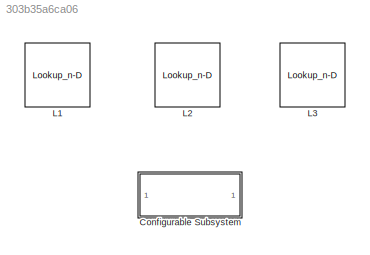
MODEL slx_303b35a6ca06
KIND library
CONFIG AbsTol = auto
CONFIG EnableMultiTasking = off
CONFIG FixedStep = auto
CONFIG MaxStep = auto
CONFIG MinStep = auto
CONFIG RelTol = 1e-3
CONFIG SampleTimeConstraint = Unconstrained
CONFIG Solver = VariableStepAuto
CONFIG SolverName = VariableStepAuto
CONFIG StartTime = 0.0
CONFIG StopTime = 10.0
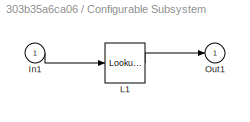
BLOCK [SubSystem] Configurable Subsystem
  BlockChoice = L1
  MemberBlocks = L1,L2,L3
  Ports = [1, 1]
  RequestExecContextInheritance = off
  TemplateBlock = self
  Variant = off
BLOCK [Inport] Configurable Subsystem/In1
  IconDisplay = Port number
BLOCK [Lookup_n-D] Configurable Subsystem/L1
  BreakpointsForDimension1 = [-5:5]
  InternalRulePriority = Speed
  NumberOfTableDimensions = 1
  Ports = [1, 1]
  RndMeth = Simplest
  Table = tanh([-5:5])
BLOCK [Outport] Configurable Subsystem/Out1
  IconDisplay = Port number
BLOCK [Lookup_n-D] L1
  BreakpointsForDimension1 = [-5:5]
  InternalRulePriority = Speed
  NumberOfTableDimensions = 1
  Ports = [1, 1]
  RndMeth = Simplest
  Table = tanh([-5:5])
BLOCK [Lookup_n-D] L2
  BreakpointsForDimension1 = [-5:5]
  InternalRulePriority = Speed
  NumberOfTableDimensions = 1
  Ports = [1, 1]
  RndMeth = Simplest
  Table = cos([-5:5])
BLOCK [Lookup_n-D] L3
  BreakpointsForDimension1 = [-5:5]
  InternalRulePriority = Speed
  NumberOfTableDimensions = 1
  Ports = [1, 1]
  RndMeth = Simplest
  Table = sin([-5:5])
LINE Configurable Subsystem/In1:1 -> Configurable Subsystem/L1:1
LINE Configurable Subsystem/L1:1 -> Configurable Subsystem/Out1:1
